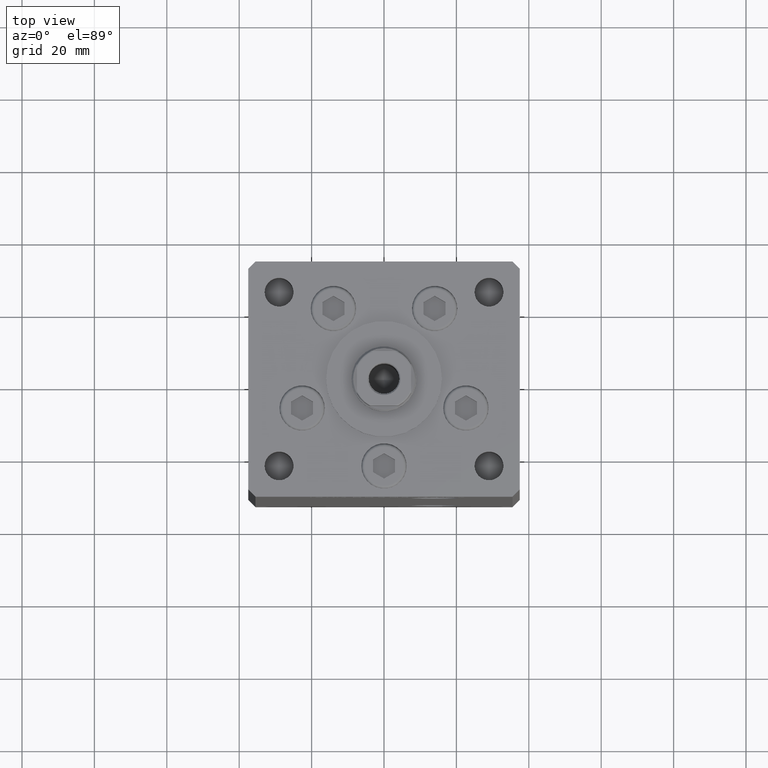
[diagram: clean part render]
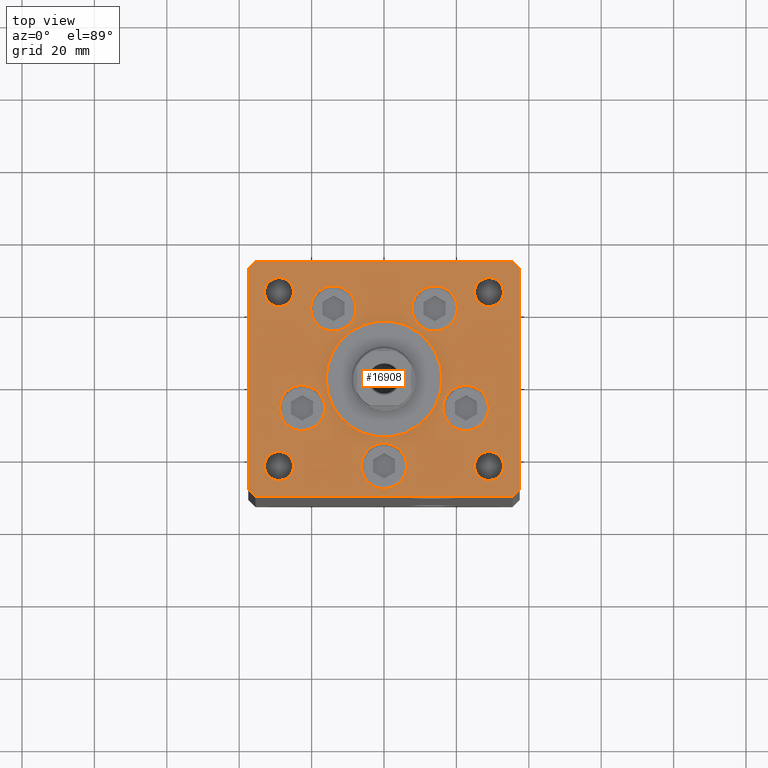
[diagram: same view with one face highlighted and labeled with its STEP entity id]
A machine part, top view. The second image highlights one B-rep face of the part: STEP entity #16908.
In plain terms, the highlighted planar face has unit normal (0, 0, 1).
Its self-contained STEP definition (entity closure, byte-faithful):
#12 = VERTEX_POINT ( 'NONE', #17050 ) ;
#80 = CIRCLE ( 'NONE', #6820, 4.000000000000000000 ) ;
#1006 = AXIS2_PLACEMENT_3D ( 'NONE', #39607, #35637, #34583 ) ;
#1009 = ORIENTED_EDGE ( 'NONE', *, *, #4005, .F. ) ;
#1161 = VECTOR ( 'NONE', #20277, 1000.000000000000000 ) ;
#1174 = CIRCLE ( 'NONE', #18041, 6.250000000000000000 ) ;
#1353 = EDGE_CURVE ( 'NONE', #35001, #31384, #41163, .T. ) ;
#1384 = VERTEX_POINT ( 'NONE', #27405 ) ;
#1475 = CARTESIAN_POINT ( 'NONE',  ( -29.00000000000000000, -23.99999999999999645, 0.000000000000000000 ) ) ;
#1580 = CARTESIAN_POINT ( 'NONE',  ( 0.000000000000000000, -24.00000000000001066, 0.000000000000000000 ) ) ;
#1716 = CIRCLE ( 'NONE', #13548, 4.000000000000000000 ) ;
#1856 = DIRECTION ( 'NONE',  ( 0.000000000000000000, 0.000000000000000000, 1.000000000000000000 ) ) ;
#1974 = DIRECTION ( 'NONE',  ( 0.000000000000000000, 0.000000000000000000, 1.000000000000000000 ) ) ;
#2077 = ORIENTED_EDGE ( 'NONE', *, *, #24348, .T. ) ;
#2608 = EDGE_CURVE ( 'NONE', #48074, #24148, #52133, .T. ) ;
#2942 = LINE ( 'NONE', #15098, #8329 ) ;
#3051 = FACE_BOUND ( 'NONE', #32601, .T. ) ;
#3781 = CARTESIAN_POINT ( 'NONE',  ( 0.000000000000000000, -6.938893903907228378E-15, 0.000000000000000000 ) ) ;
#3920 = ORIENTED_EDGE ( 'NONE', *, *, #46013, .F. ) ;
#4005 = EDGE_CURVE ( 'NONE', #15138, #44556, #20144, .T. ) ;
#4139 = DIRECTION ( 'NONE',  ( 1.000000000000000000, 0.000000000000000000, 0.000000000000000000 ) ) ;
#4754 = DIRECTION ( 'NONE',  ( 0.000000000000000000, 1.000000000000000000, 0.000000000000000000 ) ) ;
#4877 = EDGE_CURVE ( 'NONE', #46419, #12, #1716, .T. ) ;
#4955 = AXIS2_PLACEMENT_3D ( 'NONE', #1580, #33745, #41202 ) ;
#5077 = CARTESIAN_POINT ( 'NONE',  ( -6.250000000000000000, -24.00000000000001066, 0.000000000000000000 ) ) ;
#5186 = LINE ( 'NONE', #14130, #43976 ) ;
#5499 = CARTESIAN_POINT ( 'NONE',  ( 29.00000000000000355, -23.99999999999999645, 0.000000000000000000 ) ) ;
#5768 = LINE ( 'NONE', #17397, #12123 ) ;
#5813 = AXIS2_PLACEMENT_3D ( 'NONE', #36072, #35810, #4139 ) ;
#5864 = DIRECTION ( 'NONE',  ( -0.000000000000000000, -0.000000000000000000, -1.000000000000000000 ) ) ;
#5885 = CARTESIAN_POINT ( 'NONE',  ( -13.99106857963324124, 19.50000000000000000, 0.000000000000000000 ) ) ;
#6010 = ORIENTED_EDGE ( 'NONE', *, *, #13996, .T. ) ;
#6146 = AXIS2_PLACEMENT_3D ( 'NONE', #35754, #15726, #28086 ) ;
#6211 = DIRECTION ( 'NONE',  ( 1.000000000000000000, 0.000000000000000000, 0.000000000000000000 ) ) ;
#6347 = DIRECTION ( 'NONE',  ( 1.000000000000000000, 0.000000000000000000, 0.000000000000000000 ) ) ;
#6702 = VERTEX_POINT ( 'NONE', #26554 ) ;
#6820 = AXIS2_PLACEMENT_3D ( 'NONE', #22440, #1856, #26389 ) ;
#7267 = CARTESIAN_POINT ( 'NONE',  ( -22.62741699796953299, -8.000000000000000000, 0.000000000000000000 ) ) ;
#7292 = FACE_BOUND ( 'NONE', #32517, .T. ) ;
#7598 = DIRECTION ( 'NONE',  ( 1.000000000000000000, 0.000000000000000000, 0.000000000000000000 ) ) ;
#7629 = CARTESIAN_POINT ( 'NONE',  ( -22.62741699796953299, -8.000000000000000000, 0.000000000000000000 ) ) ;
#7674 = ORIENTED_EDGE ( 'NONE', *, *, #24183, .F. ) ;
#7758 = EDGE_CURVE ( 'NONE', #6702, #28620, #49912, .T. ) ;
#8011 = VERTEX_POINT ( 'NONE', #29001 ) ;
#8329 = VECTOR ( 'NONE', #10868, 1000.000000000000000 ) ;
#8451 = ORIENTED_EDGE ( 'NONE', *, *, #45918, .F. ) ;
#8574 = DIRECTION ( 'NONE',  ( -0.000000000000000000, -0.000000000000000000, -1.000000000000000000 ) ) ;
#8687 = CIRCLE ( 'NONE', #22162, 6.250000000000001776 ) ;
#8743 = CIRCLE ( 'NONE', #15496, 6.250000000000001776 ) ;
#9237 = EDGE_CURVE ( 'NONE', #11447, #8011, #45405, .T. ) ;
#9737 = DIRECTION ( 'NONE',  ( 1.000000000000000000, 0.000000000000000000, 0.000000000000000000 ) ) ;
#9788 = DIRECTION ( 'NONE',  ( 0.7071067811865512365, -0.7071067811865439090, 0.000000000000000000 ) ) ;
#9911 = ORIENTED_EDGE ( 'NONE', *, *, #12668, .T. ) ;
#9933 = LINE ( 'NONE', #22855, #47979 ) ;
#9956 = CARTESIAN_POINT ( 'NONE',  ( -7.741068579633241242, 19.50000000000000000, 0.000000000000000000 ) ) ;
#10185 = EDGE_CURVE ( 'NONE', #32306, #36741, #49585, .T. ) ;
#10621 = EDGE_CURVE ( 'NONE', #11706, #11957, #9933, .T. ) ;
#10868 = DIRECTION ( 'NONE',  ( 0.7071067811865463515, 0.7071067811865487940, 0.000000000000000000 ) ) ;
#10968 = FACE_BOUND ( 'NONE', #17404, .T. ) ;
#11029 = ORIENTED_EDGE ( 'NONE', *, *, #10621, .T. ) ;
#11235 = FACE_BOUND ( 'NONE', #20113, .T. ) ;
#11344 = EDGE_CURVE ( 'NONE', #21559, #45438, #2942, .T. ) ;
#11447 = VERTEX_POINT ( 'NONE', #32912 ) ;
#11493 = ORIENTED_EDGE ( 'NONE', *, *, #43375, .F. ) ;
#11706 = VERTEX_POINT ( 'NONE', #34148 ) ;
#11734 = DIRECTION ( 'NONE',  ( 1.000000000000000000, 0.000000000000000000, 0.000000000000000000 ) ) ;
#11759 = AXIS2_PLACEMENT_3D ( 'NONE', #42015, #5864, #49934 ) ;
#11957 = VERTEX_POINT ( 'NONE', #12756 ) ;
#11974 = CIRCLE ( 'NONE', #1006, 6.250000000000000000 ) ;
#12015 = CIRCLE ( 'NONE', #17064, 16.00000000000000355 ) ;
#12096 = CARTESIAN_POINT ( 'NONE',  ( -35.50000000000000711, 32.49999999999997868, 0.000000000000000000 ) ) ;
#12123 = VECTOR ( 'NONE', #30273, 1000.000000000000000 ) ;
#12440 = EDGE_LOOP ( 'NONE', ( #17158, #8451 ) ) ;
#12555 = CARTESIAN_POINT ( 'NONE',  ( 24.99999999999999645, 24.00000000000000355, 0.000000000000000000 ) ) ;
#12665 = LINE ( 'NONE', #24283, #25438 ) ;
#12668 = EDGE_CURVE ( 'NONE', #12, #46419, #14275, .T. ) ;
#12756 = CARTESIAN_POINT ( 'NONE',  ( 35.50000000000000000, 32.49999999999999289, 0.000000000000000000 ) ) ;
#13548 = AXIS2_PLACEMENT_3D ( 'NONE', #44739, #8574, #16760 ) ;
#13652 = VERTEX_POINT ( 'NONE', #48406 ) ;
#13743 = EDGE_LOOP ( 'NONE', ( #41022, #6010 ) ) ;
#13967 = VERTEX_POINT ( 'NONE', #9956 ) ;
#13996 = EDGE_CURVE ( 'NONE', #13652, #30413, #25256, .T. ) ;
#14130 = CARTESIAN_POINT ( 'NONE',  ( 35.50000000000000000, 32.49999999999999289, 0.000000000000000000 ) ) ;
#14198 = AXIS2_PLACEMENT_3D ( 'NONE', #34988, #38442, #14952 ) ;
#14275 = CIRCLE ( 'NONE', #11759, 4.000000000000000000 ) ;
#14545 = ORIENTED_EDGE ( 'NONE', *, *, #29244, .F. ) ;
#14952 = DIRECTION ( 'NONE',  ( 1.000000000000000000, 0.000000000000000000, 0.000000000000000000 ) ) ;
#15098 = CARTESIAN_POINT ( 'NONE',  ( 35.50000000000001421, -32.49999999999992184, 0.000000000000000000 ) ) ;
#15137 = EDGE_CURVE ( 'NONE', #36741, #32306, #21091, .T. ) ;
#15138 = VERTEX_POINT ( 'NONE', #50034 ) ;
#15496 = AXIS2_PLACEMENT_3D ( 'NONE', #7267, #47902, #11734 ) ;
#15726 = DIRECTION ( 'NONE',  ( 0.000000000000000000, 0.000000000000000000, 1.000000000000000000 ) ) ;
#16276 = EDGE_CURVE ( 'NONE', #45098, #43661, #80, .T. ) ;
#16350 = DIRECTION ( 'NONE',  ( 0.000000000000000000, 0.000000000000000000, 1.000000000000000000 ) ) ;
#16593 = CARTESIAN_POINT ( 'NONE',  ( -32.99999999999999289, -23.99999999999999645, 0.000000000000000000 ) ) ;
#16760 = DIRECTION ( 'NONE',  ( -1.000000000000000000, 0.000000000000000000, 0.000000000000000000 ) ) ;
#16908 = ADVANCED_FACE ( 'NONE', ( #34975, #27840, #11235, #47141, #19417, #19159, #3051, #10968, #7292, #47926, #22836 ), #31278, .T. ) ;
#17050 = CARTESIAN_POINT ( 'NONE',  ( -25.00000000000000000, 24.00000000000000711, 0.000000000000000000 ) ) ;
#17064 = AXIS2_PLACEMENT_3D ( 'NONE', #3781, #47872, #35707 ) ;
#17083 = CARTESIAN_POINT ( 'NONE',  ( -35.50000000000001421, -32.50000000000000711, 0.000000000000000000 ) ) ;
#17158 = ORIENTED_EDGE ( 'NONE', *, *, #2608, .F. ) ;
#17160 = DIRECTION ( 'NONE',  ( 0.000000000000000000, 0.000000000000000000, 1.000000000000000000 ) ) ;
#17397 = CARTESIAN_POINT ( 'NONE',  ( -35.50000000000001421, -32.50000000000000711, 0.000000000000000000 ) ) ;
#17404 = EDGE_LOOP ( 'NONE', ( #32902, #23304 ) ) ;
#17669 = CARTESIAN_POINT ( 'NONE',  ( -29.00000000000000000, -23.99999999999999645, 0.000000000000000000 ) ) ;
#17833 = DIRECTION ( 'NONE',  ( -1.000000000000000000, -1.954618001100627573E-16, 0.000000000000000000 ) ) ;
#17884 = CARTESIAN_POINT ( 'NONE',  ( 35.50000000000001421, -32.49999999999992184, 0.000000000000000000 ) ) ;
#18041 = AXIS2_PLACEMENT_3D ( 'NONE', #5885, #21965, #30654 ) ;
#18267 = DIRECTION ( 'NONE',  ( 1.000000000000000000, 0.000000000000000000, 0.000000000000000000 ) ) ;
#18958 = EDGE_LOOP ( 'NONE', ( #47313, #3920 ) ) ;
#19159 = FACE_BOUND ( 'NONE', #18958, .T. ) ;
#19417 = FACE_BOUND ( 'NONE', #12440, .T. ) ;
#19701 = AXIS2_PLACEMENT_3D ( 'NONE', #20247, #36325, #7598 ) ;
#19767 = DIRECTION ( 'NONE',  ( 0.000000000000000000, 0.000000000000000000, 1.000000000000000000 ) ) ;
#19946 = DIRECTION ( 'NONE',  ( 1.000000000000000000, 0.000000000000000000, 0.000000000000000000 ) ) ;
#20113 = EDGE_LOOP ( 'NONE', ( #11493, #7674 ) ) ;
#20144 = CIRCLE ( 'NONE', #5813, 6.250000000000001776 ) ;
#20247 = CARTESIAN_POINT ( 'NONE',  ( 29.00000000000000000, 24.00000000000000355, 0.000000000000000000 ) ) ;
#20277 = DIRECTION ( 'NONE',  ( -0.7071067811865524577, -0.7071067811865426878, 0.000000000000000000 ) ) ;
#20433 = CARTESIAN_POINT ( 'NONE',  ( -20.24106857963324302, 19.50000000000000000, 0.000000000000000000 ) ) ;
#20528 = CIRCLE ( 'NONE', #29768, 6.250000000000000000 ) ;
#20577 = ORIENTED_EDGE ( 'NONE', *, *, #31153, .T. ) ;
#20604 = DIRECTION ( 'NONE',  ( 1.000000000000000000, 0.000000000000000000, 0.000000000000000000 ) ) ;
#20704 = ORIENTED_EDGE ( 'NONE', *, *, #26494, .F. ) ;
#21091 = CIRCLE ( 'NONE', #48084, 3.999999999999996447 ) ;
#21397 = CARTESIAN_POINT ( 'NONE',  ( -33.00000000000000000, 24.00000000000000711, 0.000000000000000000 ) ) ;
#21559 = VERTEX_POINT ( 'NONE', #17884 ) ;
#21965 = DIRECTION ( 'NONE',  ( 0.000000000000000000, 0.000000000000000000, 1.000000000000000000 ) ) ;
#22162 = AXIS2_PLACEMENT_3D ( 'NONE', #22679, #34283, #6347 ) ;
#22440 = CARTESIAN_POINT ( 'NONE',  ( 29.00000000000000000, 24.00000000000000355, 0.000000000000000000 ) ) ;
#22679 = CARTESIAN_POINT ( 'NONE',  ( 22.62741699796953299, -8.000000000000000000, 0.000000000000000000 ) ) ;
#22821 = EDGE_CURVE ( 'NONE', #11957, #44037, #5186, .T. ) ;
#22836 = FACE_BOUND ( 'NONE', #13743, .T. ) ;
#22855 = CARTESIAN_POINT ( 'NONE',  ( 37.50000000000000711, 30.50000000000001421, 0.000000000000000000 ) ) ;
#22935 = CARTESIAN_POINT ( 'NONE',  ( 37.50000000000000711, -30.49999999999992895, 0.000000000000000000 ) ) ;
#23024 = EDGE_LOOP ( 'NONE', ( #26292, #41339, #30777, #2077, #11029, #42523, #20577, #29981 ) ) ;
#23095 = CARTESIAN_POINT ( 'NONE',  ( 0.000000000000000000, 0.000000000000000000, 0.000000000000000000 ) ) ;
#23165 = CARTESIAN_POINT ( 'NONE',  ( -37.50000000000001421, 30.50000000000000000, 0.000000000000000000 ) ) ;
#23304 = ORIENTED_EDGE ( 'NONE', *, *, #16276, .F. ) ;
#23670 = EDGE_CURVE ( 'NONE', #30413, #13652, #30436, .T. ) ;
#24148 = VERTEX_POINT ( 'NONE', #5077 ) ;
#24183 = EDGE_CURVE ( 'NONE', #45028, #1384, #11974, .T. ) ;
#24283 = CARTESIAN_POINT ( 'NONE',  ( -37.50000000000001421, 30.50000000000000000, 0.000000000000000000 ) ) ;
#24329 = EDGE_CURVE ( 'NONE', #35873, #6702, #12665, .T. ) ;
#24348 = EDGE_CURVE ( 'NONE', #45438, #11706, #44872, .T. ) ;
#24788 = CARTESIAN_POINT ( 'NONE',  ( 37.50000000000000711, -30.49999999999992895, 0.000000000000000000 ) ) ;
#25046 = CARTESIAN_POINT ( 'NONE',  ( 16.37741699796953299, -8.000000000000000000, 0.000000000000000000 ) ) ;
#25256 = CIRCLE ( 'NONE', #27788, 4.000000000000000000 ) ;
#25438 = VECTOR ( 'NONE', #36161, 1000.000000000000000 ) ;
#25938 = EDGE_CURVE ( 'NONE', #47233, #13967, #35574, .T. ) ;
#26292 = ORIENTED_EDGE ( 'NONE', *, *, #7758, .T. ) ;
#26389 = DIRECTION ( 'NONE',  ( 1.000000000000000000, 0.000000000000000000, 0.000000000000000000 ) ) ;
#26494 = EDGE_CURVE ( 'NONE', #8011, #11447, #12015, .T. ) ;
#26554 = CARTESIAN_POINT ( 'NONE',  ( -37.50000000000000000, -30.50000000000004263, 0.000000000000000000 ) ) ;
#26802 = AXIS2_PLACEMENT_3D ( 'NONE', #17669, #17160, #9737 ) ;
#27350 = CARTESIAN_POINT ( 'NONE',  ( 7.741068579633241242, 19.50000000000000000, 0.000000000000000000 ) ) ;
#27405 = CARTESIAN_POINT ( 'NONE',  ( 20.24106857963324302, 19.50000000000000000, 0.000000000000000000 ) ) ;
#27788 = AXIS2_PLACEMENT_3D ( 'NONE', #5499, #37673, #45865 ) ;
#27840 = FACE_BOUND ( 'NONE', #46348, .T. ) ;
#27997 = CARTESIAN_POINT ( 'NONE',  ( -13.99106857963324124, 19.50000000000000000, 0.000000000000000000 ) ) ;
#28086 = DIRECTION ( 'NONE',  ( 1.000000000000000000, 0.000000000000000000, 0.000000000000000000 ) ) ;
#28464 = VECTOR ( 'NONE', #9788, 1000.000000000000000 ) ;
#28620 = VERTEX_POINT ( 'NONE', #17083 ) ;
#28926 = CIRCLE ( 'NONE', #6146, 6.250000000000000000 ) ;
#29001 = CARTESIAN_POINT ( 'NONE',  ( 16.00000000000000355, -4.979459025271462852E-15, 0.000000000000000000 ) ) ;
#29006 = ORIENTED_EDGE ( 'NONE', *, *, #10185, .F. ) ;
#29244 = EDGE_CURVE ( 'NONE', #44556, #15138, #8687, .T. ) ;
#29768 = AXIS2_PLACEMENT_3D ( 'NONE', #46324, #1974, #6211 ) ;
#29827 = CARTESIAN_POINT ( 'NONE',  ( -37.50000000000000000, -30.50000000000004263, 0.000000000000000000 ) ) ;
#29981 = ORIENTED_EDGE ( 'NONE', *, *, #24329, .T. ) ;
#30273 = DIRECTION ( 'NONE',  ( 1.000000000000000000, 1.172770800660376149E-15, 0.000000000000000000 ) ) ;
#30307 = EDGE_CURVE ( 'NONE', #43661, #45098, #50889, .T. ) ;
#30413 = VERTEX_POINT ( 'NONE', #50823 ) ;
#30436 = CIRCLE ( 'NONE', #41433, 4.000000000000000000 ) ;
#30481 = VECTOR ( 'NONE', #4754, 1000.000000000000000 ) ;
#30654 = DIRECTION ( 'NONE',  ( 1.000000000000000000, 0.000000000000000000, 0.000000000000000000 ) ) ;
#30777 = ORIENTED_EDGE ( 'NONE', *, *, #11344, .T. ) ;
#30827 = EDGE_LOOP ( 'NONE', ( #1009, #14545 ) ) ;
#30831 = EDGE_CURVE ( 'NONE', #28620, #21559, #5768, .T. ) ;
#31153 = EDGE_CURVE ( 'NONE', #44037, #35873, #47486, .T. ) ;
#31216 = AXIS2_PLACEMENT_3D ( 'NONE', #23095, #38942, #19946 ) ;
#31278 = PLANE ( 'NONE',  #31216 ) ;
#31384 = VERTEX_POINT ( 'NONE', #42678 ) ;
#32306 = VERTEX_POINT ( 'NONE', #40806 ) ;
#32517 = EDGE_LOOP ( 'NONE', ( #29006, #51297 ) ) ;
#32571 = CARTESIAN_POINT ( 'NONE',  ( 29.00000000000000355, -23.99999999999999645, 0.000000000000000000 ) ) ;
#32601 = EDGE_LOOP ( 'NONE', ( #9911, #39685 ) ) ;
#32653 = ORIENTED_EDGE ( 'NONE', *, *, #46172, .F. ) ;
#32902 = ORIENTED_EDGE ( 'NONE', *, *, #30307, .F. ) ;
#32912 = CARTESIAN_POINT ( 'NONE',  ( -16.00000000000000355, -6.938893903907228378E-15, 0.000000000000000000 ) ) ;
#33398 = DIRECTION ( 'NONE',  ( 1.000000000000000000, 0.000000000000000000, 0.000000000000000000 ) ) ;
#33745 = DIRECTION ( 'NONE',  ( 0.000000000000000000, 0.000000000000000000, 1.000000000000000000 ) ) ;
#34148 = CARTESIAN_POINT ( 'NONE',  ( 37.50000000000000711, 30.50000000000001421, 0.000000000000000000 ) ) ;
#34283 = DIRECTION ( 'NONE',  ( 0.000000000000000000, 0.000000000000000000, 1.000000000000000000 ) ) ;
#34583 = DIRECTION ( 'NONE',  ( 1.000000000000000000, 0.000000000000000000, 0.000000000000000000 ) ) ;
#34975 = FACE_BOUND ( 'NONE', #43359, .T. ) ;
#34988 = CARTESIAN_POINT ( 'NONE',  ( 0.000000000000000000, -6.938893903907228378E-15, 0.000000000000000000 ) ) ;
#35001 = VERTEX_POINT ( 'NONE', #40254 ) ;
#35574 = CIRCLE ( 'NONE', #49904, 6.250000000000000000 ) ;
#35637 = DIRECTION ( 'NONE',  ( 0.000000000000000000, 0.000000000000000000, 1.000000000000000000 ) ) ;
#35707 = DIRECTION ( 'NONE',  ( 1.000000000000000000, 0.000000000000000000, 0.000000000000000000 ) ) ;
#35754 = CARTESIAN_POINT ( 'NONE',  ( 13.99106857963324124, 19.50000000000000000, 0.000000000000000000 ) ) ;
#35810 = DIRECTION ( 'NONE',  ( 0.000000000000000000, 0.000000000000000000, 1.000000000000000000 ) ) ;
#35873 = VERTEX_POINT ( 'NONE', #23165 ) ;
#36072 = CARTESIAN_POINT ( 'NONE',  ( 22.62741699796953299, -8.000000000000000000, 0.000000000000000000 ) ) ;
#36161 = DIRECTION ( 'NONE',  ( 2.275047181608926165E-16, -1.000000000000000000, 0.000000000000000000 ) ) ;
#36325 = DIRECTION ( 'NONE',  ( 0.000000000000000000, 0.000000000000000000, 1.000000000000000000 ) ) ;
#36741 = VERTEX_POINT ( 'NONE', #16593 ) ;
#37571 = CARTESIAN_POINT ( 'NONE',  ( 6.250000000000000000, -24.00000000000001066, 0.000000000000000000 ) ) ;
#37673 = DIRECTION ( 'NONE',  ( -0.000000000000000000, -0.000000000000000000, -1.000000000000000000 ) ) ;
#38442 = DIRECTION ( 'NONE',  ( 0.000000000000000000, 0.000000000000000000, 1.000000000000000000 ) ) ;
#38550 = CARTESIAN_POINT ( 'NONE',  ( 33.00000000000000000, 24.00000000000000355, 0.000000000000000000 ) ) ;
#38942 = DIRECTION ( 'NONE',  ( -0.000000000000000000, 0.000000000000000000, 1.000000000000000000 ) ) ;
#38960 = DIRECTION ( 'NONE',  ( -0.7071067811865524577, 0.7071067811865426878, 0.000000000000000000 ) ) ;
#39607 = CARTESIAN_POINT ( 'NONE',  ( 13.99106857963324124, 19.50000000000000000, 0.000000000000000000 ) ) ;
#39685 = ORIENTED_EDGE ( 'NONE', *, *, #4877, .T. ) ;
#40254 = CARTESIAN_POINT ( 'NONE',  ( -16.37741699796953299, -8.000000000000000000, 0.000000000000000000 ) ) ;
#40294 = AXIS2_PLACEMENT_3D ( 'NONE', #7629, #19767, #18267 ) ;
#40806 = CARTESIAN_POINT ( 'NONE',  ( -25.00000000000000355, -23.99999999999999645, 0.000000000000000000 ) ) ;
#41022 = ORIENTED_EDGE ( 'NONE', *, *, #23670, .T. ) ;
#41163 = CIRCLE ( 'NONE', #40294, 6.250000000000001776 ) ;
#41202 = DIRECTION ( 'NONE',  ( 1.000000000000000000, 0.000000000000000000, 0.000000000000000000 ) ) ;
#41339 = ORIENTED_EDGE ( 'NONE', *, *, #30831, .T. ) ;
#41433 = AXIS2_PLACEMENT_3D ( 'NONE', #32571, #48187, #48697 ) ;
#42015 = CARTESIAN_POINT ( 'NONE',  ( -29.00000000000000000, 24.00000000000000711, 0.000000000000000000 ) ) ;
#42322 = CARTESIAN_POINT ( 'NONE',  ( -35.50000000000000711, 32.49999999999997868, 0.000000000000000000 ) ) ;
#42523 = ORIENTED_EDGE ( 'NONE', *, *, #22821, .T. ) ;
#42678 = CARTESIAN_POINT ( 'NONE',  ( -28.87741699796953654, -8.000000000000000000, 0.000000000000000000 ) ) ;
#43359 = EDGE_LOOP ( 'NONE', ( #50813, #20704 ) ) ;
#43375 = EDGE_CURVE ( 'NONE', #1384, #45028, #28926, .T. ) ;
#43661 = VERTEX_POINT ( 'NONE', #38550 ) ;
#43976 = VECTOR ( 'NONE', #17833, 1000.000000000000000 ) ;
#44037 = VERTEX_POINT ( 'NONE', #42322 ) ;
#44556 = VERTEX_POINT ( 'NONE', #25046 ) ;
#44739 = CARTESIAN_POINT ( 'NONE',  ( -29.00000000000000000, 24.00000000000000711, 0.000000000000000000 ) ) ;
#44872 = LINE ( 'NONE', #24788, #30481 ) ;
#45028 = VERTEX_POINT ( 'NONE', #27350 ) ;
#45098 = VERTEX_POINT ( 'NONE', #12555 ) ;
#45159 = DIRECTION ( 'NONE',  ( 0.000000000000000000, 0.000000000000000000, 1.000000000000000000 ) ) ;
#45405 = CIRCLE ( 'NONE', #14198, 16.00000000000000355 ) ;
#45438 = VERTEX_POINT ( 'NONE', #22935 ) ;
#45865 = DIRECTION ( 'NONE',  ( -1.000000000000000000, 0.000000000000000000, 0.000000000000000000 ) ) ;
#45918 = EDGE_CURVE ( 'NONE', #24148, #48074, #20528, .T. ) ;
#46013 = EDGE_CURVE ( 'NONE', #31384, #35001, #8743, .T. ) ;
#46172 = EDGE_CURVE ( 'NONE', #13967, #47233, #1174, .T. ) ;
#46324 = CARTESIAN_POINT ( 'NONE',  ( 0.000000000000000000, -24.00000000000001066, 0.000000000000000000 ) ) ;
#46348 = EDGE_LOOP ( 'NONE', ( #32653, #50870 ) ) ;
#46419 = VERTEX_POINT ( 'NONE', #21397 ) ;
#47141 = FACE_BOUND ( 'NONE', #30827, .T. ) ;
#47233 = VERTEX_POINT ( 'NONE', #20433 ) ;
#47313 = ORIENTED_EDGE ( 'NONE', *, *, #1353, .F. ) ;
#47486 = LINE ( 'NONE', #12096, #1161 ) ;
#47872 = DIRECTION ( 'NONE',  ( 0.000000000000000000, 0.000000000000000000, 1.000000000000000000 ) ) ;
#47902 = DIRECTION ( 'NONE',  ( 0.000000000000000000, 0.000000000000000000, 1.000000000000000000 ) ) ;
#47926 = FACE_OUTER_BOUND ( 'NONE', #23024, .T. ) ;
#47979 = VECTOR ( 'NONE', #38960, 1000.000000000000000 ) ;
#48074 = VERTEX_POINT ( 'NONE', #37571 ) ;
#48084 = AXIS2_PLACEMENT_3D ( 'NONE', #1475, #16350, #33398 ) ;
#48187 = DIRECTION ( 'NONE',  ( -0.000000000000000000, -0.000000000000000000, -1.000000000000000000 ) ) ;
#48406 = CARTESIAN_POINT ( 'NONE',  ( 25.00000000000000355, -23.99999999999999645, 0.000000000000000000 ) ) ;
#48697 = DIRECTION ( 'NONE',  ( -1.000000000000000000, 0.000000000000000000, 0.000000000000000000 ) ) ;
#49585 = CIRCLE ( 'NONE', #26802, 3.999999999999996447 ) ;
#49904 = AXIS2_PLACEMENT_3D ( 'NONE', #27997, #45159, #20604 ) ;
#49912 = LINE ( 'NONE', #29827, #28464 ) ;
#49934 = DIRECTION ( 'NONE',  ( -1.000000000000000000, 0.000000000000000000, 0.000000000000000000 ) ) ;
#50034 = CARTESIAN_POINT ( 'NONE',  ( 28.87741699796953654, -8.000000000000000000, 0.000000000000000000 ) ) ;
#50813 = ORIENTED_EDGE ( 'NONE', *, *, #9237, .F. ) ;
#50823 = CARTESIAN_POINT ( 'NONE',  ( 33.00000000000000000, -23.99999999999999645, 0.000000000000000000 ) ) ;
#50870 = ORIENTED_EDGE ( 'NONE', *, *, #25938, .F. ) ;
#50889 = CIRCLE ( 'NONE', #19701, 4.000000000000000000 ) ;
#51297 = ORIENTED_EDGE ( 'NONE', *, *, #15137, .F. ) ;
#52133 = CIRCLE ( 'NONE', #4955, 6.250000000000000000 ) ;